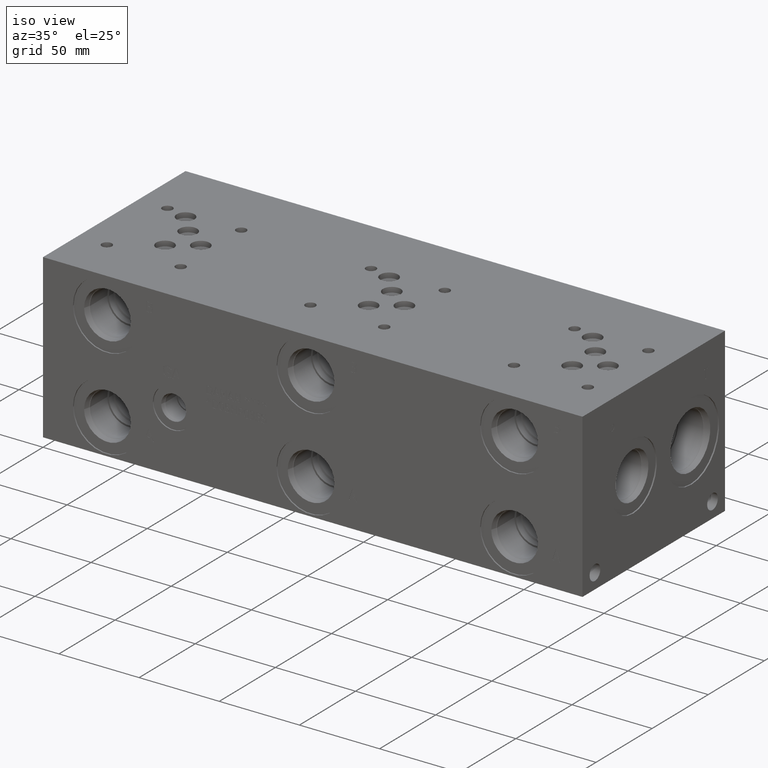
[diagram: clean part render]
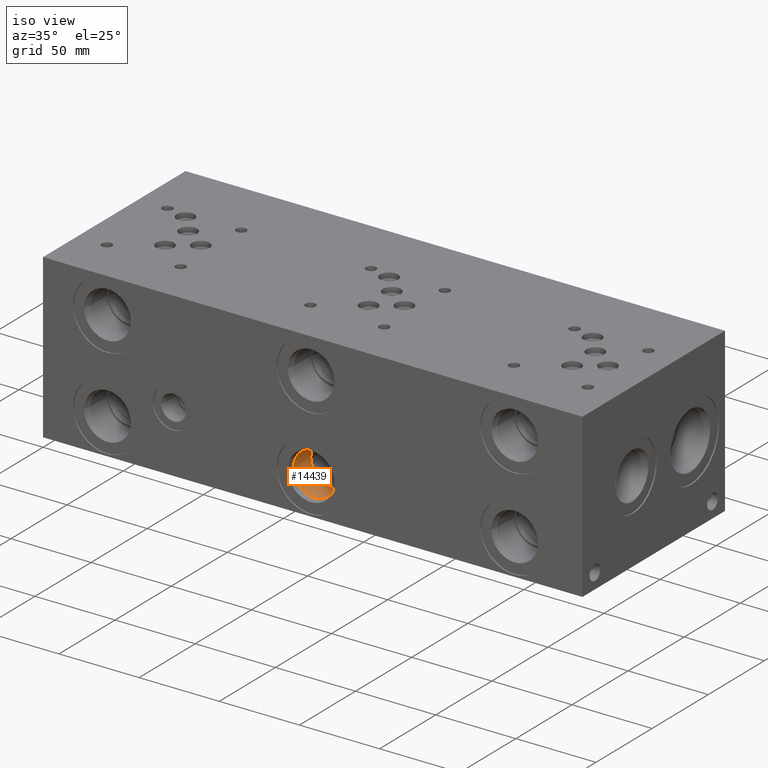
[diagram: same view with one face highlighted and labeled with its STEP entity id]
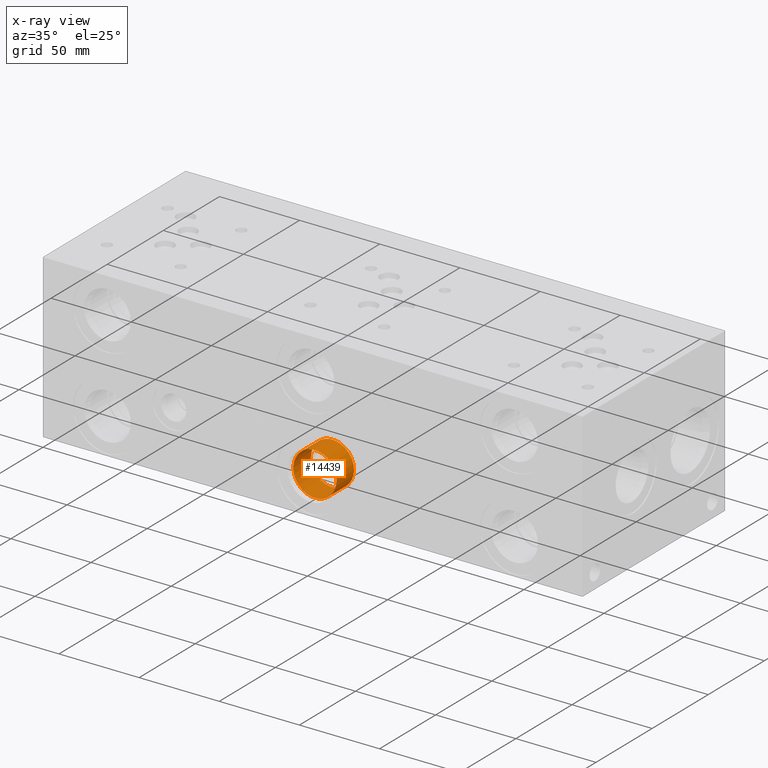
[diagram: x-ray of the same camera — body ghosted, the highlighted face saturated]
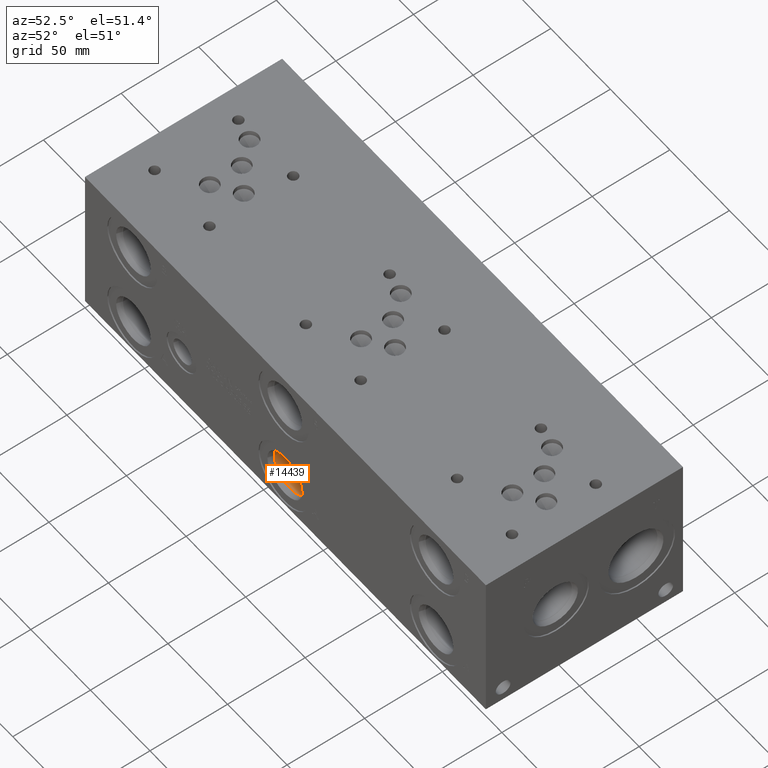
[diagram: same view with one face highlighted and labeled with its STEP entity id]
A machine part, iso view. The second image highlights one B-rep face of the part: STEP entity #14439.
The next image is the same camera in x-ray: the body ghosted, the highlighted face saturated — about 0% of this face is hidden behind the body in this view.
A second angle (auxiliary view) of the same face is appended — the face is thin or edge-on in the first view.
In plain terms, the highlighted cylindrical surface (bore or boss wall) has radius 13.495 mm, axis along (0, -1, 0).
Its self-contained STEP definition (entity closure, byte-faithful):
#138=CYLINDRICAL_SURFACE('',#15235,13.495);
#514=CIRCLE('',#15132,13.495);
#574=CIRCLE('',#15232,13.495);
#575=CIRCLE('',#15233,13.495);
#1880=FACE_OUTER_BOUND('',#2719,.T.);
#2719=EDGE_LOOP('',(#12346,#12347,#12348,#12349,#12350));
#4061=LINE('',#24658,#5343);
#5343=VECTOR('',#18067,13.495);
#6561=VERTEX_POINT('',#24451);
#6627=VERTEX_POINT('',#24651);
#6628=VERTEX_POINT('',#24652);
#8496=EDGE_CURVE('',#6561,#6561,#514,.T.);
#8589=EDGE_CURVE('',#6627,#6628,#574,.T.);
#8590=EDGE_CURVE('',#6628,#6627,#575,.T.);
#8592=EDGE_CURVE('',#6561,#6628,#4061,.T.);
#12346=ORIENTED_EDGE('',*,*,#8496,.T.);
#12347=ORIENTED_EDGE('',*,*,#8592,.T.);
#12348=ORIENTED_EDGE('',*,*,#8589,.F.);
#12349=ORIENTED_EDGE('',*,*,#8590,.F.);
#12350=ORIENTED_EDGE('',*,*,#8592,.F.);
#14439=ADVANCED_FACE('',(#1880),#138,.F.);
#15132=AXIS2_PLACEMENT_3D('',#24453,#17826,#17827);
#15232=AXIS2_PLACEMENT_3D('',#24653,#18059,#18060);
#15233=AXIS2_PLACEMENT_3D('',#24654,#18061,#18062);
#15235=AXIS2_PLACEMENT_3D('',#24657,#18065,#18066);
#17826=DIRECTION('center_axis',(0.,-1.,0.));
#17827=DIRECTION('ref_axis',(1.,0.,0.));
#18059=DIRECTION('center_axis',(0.,-1.,0.));
#18060=DIRECTION('ref_axis',(1.,0.,0.));
#18061=DIRECTION('center_axis',(0.,-1.,0.));
#18062=DIRECTION('ref_axis',(1.,0.,0.));
#18065=DIRECTION('center_axis',(0.,-1.,0.));
#18066=DIRECTION('ref_axis',(1.,0.,0.));
#18067=DIRECTION('',(0.,1.,0.));
#24451=CARTESIAN_POINT('',(153.1798,4.28500000000001,22.225));
#24453=CARTESIAN_POINT('Origin',(166.6748,4.28500000000001,22.225));
#24651=CARTESIAN_POINT('',(180.1698,19.8374,22.225));
#24652=CARTESIAN_POINT('',(153.1798,19.8374,22.225));
#24653=CARTESIAN_POINT('Origin',(166.6748,19.8374,22.225));
#24654=CARTESIAN_POINT('Origin',(166.6748,19.8374,22.225));
#24657=CARTESIAN_POINT('Origin',(166.6748,9.9187,22.225));
#24658=CARTESIAN_POINT('',(153.1798,9.9187,22.225));